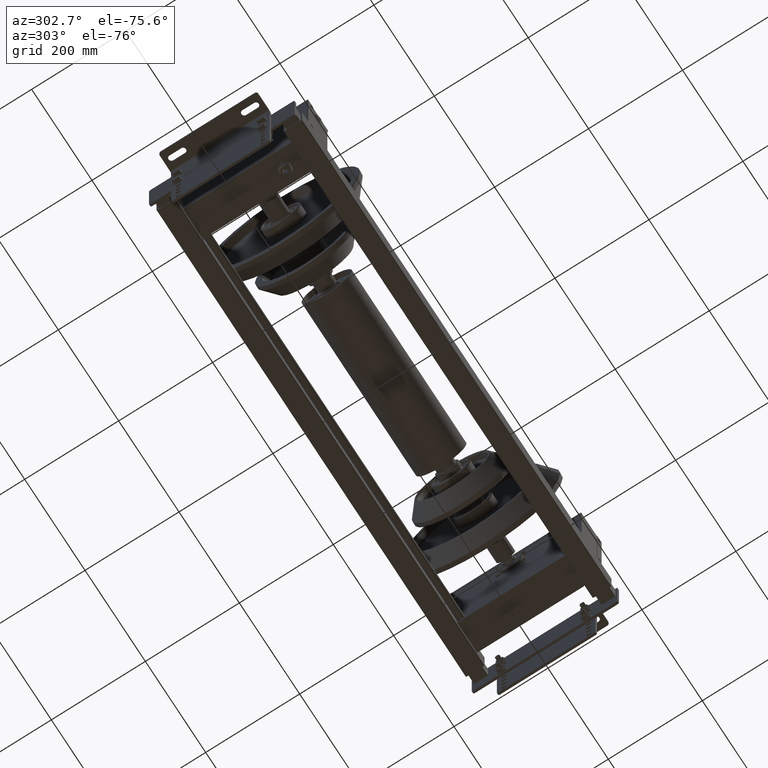
[diagram: clean part render]
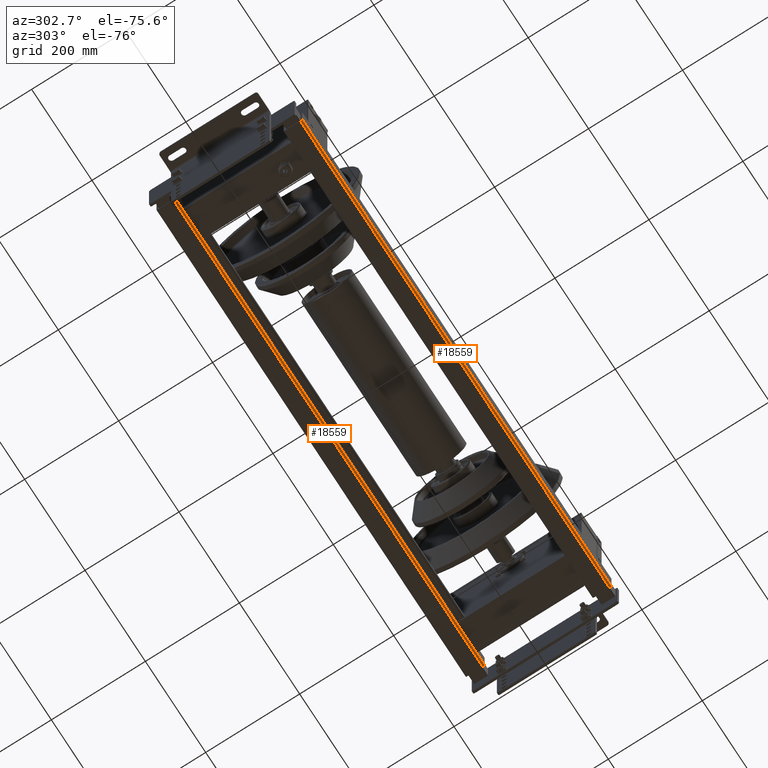
[diagram: same view with one multi-face feature highlighted, each face labeled with its STEP entity id]
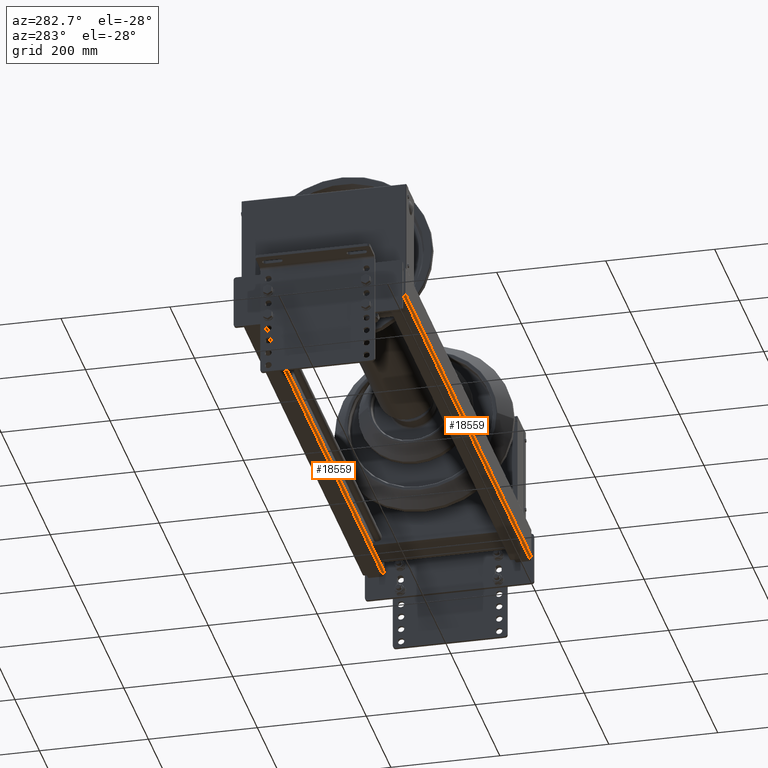
[diagram: same view with one multi-face feature highlighted, each face labeled with its STEP entity id]
A machine part, auxiliary view. The highlighted faces form ONE feature: a constant-radius fillet chain: 2 tangent blend faces with common blend radius 4 mm. The faces share edges in the B-rep.
A second angle (auxiliary view) of the same feature is appended — it is thin or edge-on in the first view.
Their STEP definitions:
[1] entity #18559 (Cylinder):
#18501=CARTESIAN_POINT('',(-16.0,-29.999999999999886,620.0));
#18502=VERTEX_POINT('',#18501);
#18509=CARTESIAN_POINT('',(-16.0,-29.999999999999886,-405.0));
#18510=VERTEX_POINT('',#18509);
#18511=CARTESIAN_POINT('',(-16.0,-29.999999999999886,-405.0));
#18512=DIRECTION('',(0.0,0.0,1.0));
#18513=VECTOR('',#18512,1025.0);
#18514=LINE('',#18511,#18513);
#18515=EDGE_CURVE('',#18510,#18502,#18514,.T.);
#18527=CARTESIAN_POINT('',(-16.0,-25.999999999999886,-405.0));
#18528=DIRECTION('',(0.0,0.0,1.0));
#18529=DIRECTION('',(1.0,0.0,0.0));
#18530=AXIS2_PLACEMENT_3D('',#18527,#18528,#18529);
#18531=CYLINDRICAL_SURFACE('',#18530,4.0);
#18532=CARTESIAN_POINT('',(-20.0,-25.999999999999886,620.0));
#18533=VERTEX_POINT('',#18532);
#18534=CARTESIAN_POINT('',(-16.0,-25.999999999999886,620.0));
#18535=DIRECTION('',(0.0,0.0,-1.0));
#18536=DIRECTION('',(1.0,0.0,0.0));
#18537=AXIS2_PLACEMENT_3D('',#18534,#18535,#18536);
#18538=CIRCLE('',#18537,4.0);
#18539=EDGE_CURVE('',#18502,#18533,#18538,.T.);
#18540=ORIENTED_EDGE('',*,*,#18539,.T.);
#18541=CARTESIAN_POINT('',(-20.0,-25.999999999999886,-405.0));
#18542=VERTEX_POINT('',#18541);
#18543=CARTESIAN_POINT('',(-20.0,-25.999999999999886,-405.0));
#18544=DIRECTION('',(0.0,0.0,1.0));
#18545=VECTOR('',#18544,1025.0);
#18546=LINE('',#18543,#18545);
#18547=EDGE_CURVE('',#18542,#18533,#18546,.T.);
#18548=ORIENTED_EDGE('',*,*,#18547,.F.);
#18549=CARTESIAN_POINT('',(-16.0,-25.999999999999886,-405.0));
#18550=DIRECTION('',(0.0,0.0,-1.0));
#18551=DIRECTION('',(1.0,0.0,0.0));
#18552=AXIS2_PLACEMENT_3D('',#18549,#18550,#18551);
#18553=CIRCLE('',#18552,4.0);
#18554=EDGE_CURVE('',#18510,#18542,#18553,.T.);
#18555=ORIENTED_EDGE('',*,*,#18554,.F.);
#18556=ORIENTED_EDGE('',*,*,#18515,.T.);
#18557=EDGE_LOOP('',(#18540,#18548,#18555,#18556));
#18558=FACE_OUTER_BOUND('',#18557,.T.);
#18559=ADVANCED_FACE('',(#18558),#18531,.T.);
[2] entity #18559 (Cylinder):
#18501=CARTESIAN_POINT('',(-16.0,-29.999999999999886,620.0));
#18502=VERTEX_POINT('',#18501);
#18509=CARTESIAN_POINT('',(-16.0,-29.999999999999886,-405.0));
#18510=VERTEX_POINT('',#18509);
#18511=CARTESIAN_POINT('',(-16.0,-29.999999999999886,-405.0));
#18512=DIRECTION('',(0.0,0.0,1.0));
#18513=VECTOR('',#18512,1025.0);
#18514=LINE('',#18511,#18513);
#18515=EDGE_CURVE('',#18510,#18502,#18514,.T.);
#18527=CARTESIAN_POINT('',(-16.0,-25.999999999999886,-405.0));
#18528=DIRECTION('',(0.0,0.0,1.0));
#18529=DIRECTION('',(1.0,0.0,0.0));
#18530=AXIS2_PLACEMENT_3D('',#18527,#18528,#18529);
#18531=CYLINDRICAL_SURFACE('',#18530,4.0);
#18532=CARTESIAN_POINT('',(-20.0,-25.999999999999886,620.0));
#18533=VERTEX_POINT('',#18532);
#18534=CARTESIAN_POINT('',(-16.0,-25.999999999999886,620.0));
#18535=DIRECTION('',(0.0,0.0,-1.0));
#18536=DIRECTION('',(1.0,0.0,0.0));
#18537=AXIS2_PLACEMENT_3D('',#18534,#18535,#18536);
#18538=CIRCLE('',#18537,4.0);
#18539=EDGE_CURVE('',#18502,#18533,#18538,.T.);
#18540=ORIENTED_EDGE('',*,*,#18539,.T.);
#18541=CARTESIAN_POINT('',(-20.0,-25.999999999999886,-405.0));
#18542=VERTEX_POINT('',#18541);
#18543=CARTESIAN_POINT('',(-20.0,-25.999999999999886,-405.0));
#18544=DIRECTION('',(0.0,0.0,1.0));
#18545=VECTOR('',#18544,1025.0);
#18546=LINE('',#18543,#18545);
#18547=EDGE_CURVE('',#18542,#18533,#18546,.T.);
#18548=ORIENTED_EDGE('',*,*,#18547,.F.);
#18549=CARTESIAN_POINT('',(-16.0,-25.999999999999886,-405.0));
#18550=DIRECTION('',(0.0,0.0,-1.0));
#18551=DIRECTION('',(1.0,0.0,0.0));
#18552=AXIS2_PLACEMENT_3D('',#18549,#18550,#18551);
#18553=CIRCLE('',#18552,4.0);
#18554=EDGE_CURVE('',#18510,#18542,#18553,.T.);
#18555=ORIENTED_EDGE('',*,*,#18554,.F.);
#18556=ORIENTED_EDGE('',*,*,#18515,.T.);
#18557=EDGE_LOOP('',(#18540,#18548,#18555,#18556));
#18558=FACE_OUTER_BOUND('',#18557,.T.);
#18559=ADVANCED_FACE('',(#18558),#18531,.T.);